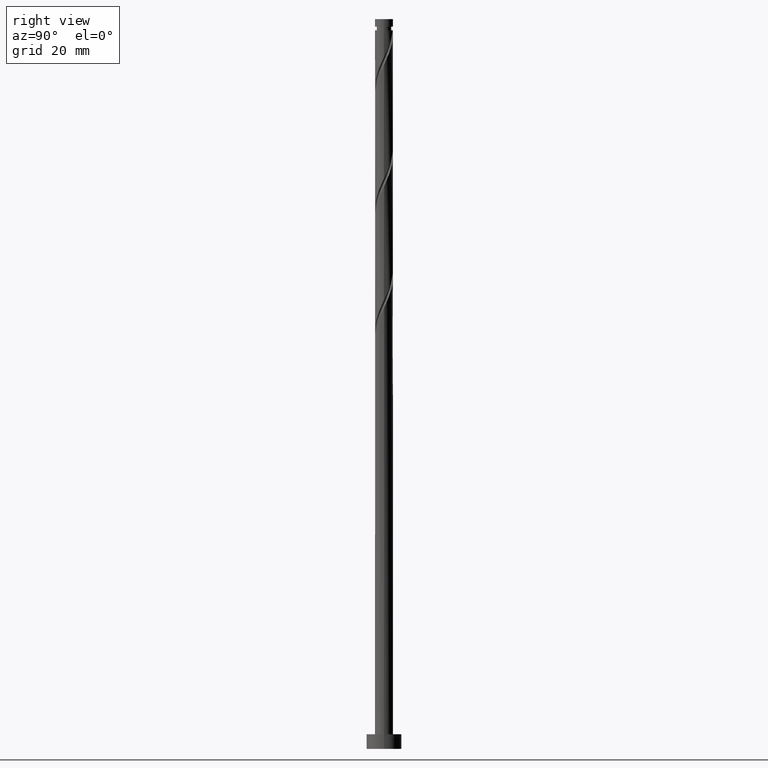
[diagram: clean part render]
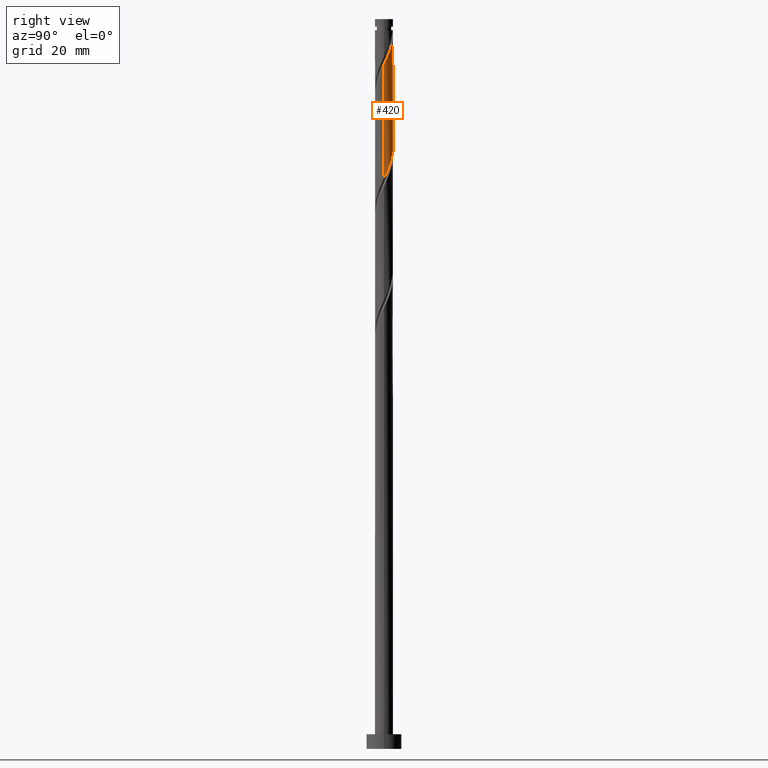
[diagram: same view with one face highlighted and labeled with its STEP entity id]
A machine part, right view. The second image highlights one B-rep face of the part: STEP entity #420.
In plain terms, the highlighted cylindrical surface (edge-blend (fillet) strip) has radius 3.1 mm, axis along (-0, -0, -1).
Its self-contained STEP definition (entity closure, byte-faithful):
#58 = CARTESIAN_POINT ( 'NONE',  ( 2.822669712321752122, 1.335746528729902183, 237.3665184554157577 ) ) ;
#78 = CARTESIAN_POINT ( 'NONE',  ( 0.1280745435953598022, 3.097353210611097918, 244.5780569169541820 ) ) ;
#112 = EDGE_CURVE ( 'NONE', #328, #1081, #1100, .T. ) ;
#125 =( BOUNDED_CURVE ( )  B_SPLINE_CURVE ( 2, ( #1617, #1496, #511, #338, #355, #58, #1193, #627, #931, #784, #1747, #1635, #1468, #1353, #78, #905, #1609 ),
 .UNSPECIFIED., .F., .T. ) 
 B_SPLINE_CURVE_WITH_KNOTS ( ( 3, 2, 2, 2, 2, 2, 2, 2, 3 ),
 ( 0.6795271625973829943, 0.6826923076923077094, 0.6923076923076924016, 0.7019230769230769829, 0.7115384615384616751, 0.7211538461538463674, 0.7307692307692310596, 0.7403846153846157518, 0.7500000000000003331 ),
 .UNSPECIFIED. ) 
 CURVE ( )  GEOMETRIC_REPRESENTATION_ITEM ( )  RATIONAL_B_SPLINE_CURVE ( ( 0.9061636035682938406, 0.9069090390690823789, 0.9090909090909391477, 0.9024626128164425776, 0.9090909090909391477, 0.9024626128164425776, 0.9090909090909391477, 0.9024626128164425776, 0.9090909090909391477, 0.9024626128164425776, 0.9090909090909391477, 0.9024626128164425776, 0.9090909090909391477, 0.9024626128164425776, 0.9090909090909391477, 0.9024626128164423555, 0.9090909090909393697 ) ) 
 REPRESENTATION_ITEM ( '' )  );
#168 = CARTESIAN_POINT ( 'NONE',  ( -3.099999999999999645, -3.948367772787669872E-15, 216.2585428954101587 ) ) ;
#213 = EDGE_CURVE ( 'NONE', #940, #393, #728, .T. ) ;
#259 = CARTESIAN_POINT ( 'NONE',  ( -3.060313128317944109, 0.6214230849569030157, 214.9306210195183553 ) ) ;
#268 = CARTESIAN_POINT ( 'NONE',  ( 2.998562407077144609, 0.8719556093840056255, 197.3024158913131885 ) ) ;
#284 = VECTOR ( 'NONE', #960, 1000.000000000000000 ) ;
#296 = DIRECTION ( 'NONE',  ( -0.000000000000000000, -0.000000000000000000, -1.000000000000000000 ) ) ;
#328 = VERTEX_POINT ( 'NONE', #699 ) ;
#338 = CARTESIAN_POINT ( 'NONE',  ( 3.060313128317948994, 0.6214230849569025716, 235.7639543528516413 ) ) ;
#355 = CARTESIAN_POINT ( 'NONE',  ( 2.941491420319851446, 0.9785848068434013225, 236.5652364041337137 ) ) ;
#378 = CARTESIAN_POINT ( 'NONE',  ( 1.326007432615846859, 2.802089272069597570, 202.9113902502875817 ) ) ;
#384 = EDGE_CURVE ( 'NONE', #1081, #393, #1011, .T. ) ;
#388 = CARTESIAN_POINT ( 'NONE',  ( -1.878597541326290532, 2.494504834951285055, 210.1229287118260629 ) ) ;
#393 = VERTEX_POINT ( 'NONE', #1120 ) ;
#401 = ORIENTED_EDGE ( 'NONE', *, *, #384, .F. ) ;
#417 = CARTESIAN_POINT ( 'NONE',  ( -3.090207698699929395, 0.2462039376120597756, 215.7319030708003424 ) ) ;
#420 = ADVANCED_FACE ( 'NONE', ( #1822 ), #1684, .T. ) ;
#489 = ORIENTED_EDGE ( 'NONE', *, *, #213, .T. ) ;
#511 = CARTESIAN_POINT ( 'NONE',  ( 3.090207698699935612, 0.2462039376120576106, 234.9626723015695973 ) ) ;
#557 = CARTESIAN_POINT ( 'NONE',  ( 3.059332338079530089, 0.5004854095583954887, 196.5011338400311161 ) ) ;
#565 = CARTESIAN_POINT ( 'NONE',  ( -1.552816185334429777, 2.683050855754215203, 209.3216466605439621 ) ) ;
#605 = ORIENTED_EDGE ( 'NONE', *, *, #691, .F. ) ;
#623 = AXIS2_PLACEMENT_3D ( 'NONE', #819, #989, #1379 ) ;
#627 = CARTESIAN_POINT ( 'NONE',  ( 2.420982992632358055, 1.972441239494200138, 238.9690825579798741 ) ) ;
#661 = ORIENTED_EDGE ( 'NONE', *, *, #112, .F. ) ;
#686 = CARTESIAN_POINT ( 'NONE',  ( -0.5041613131675906079, 3.081802145527458681, 206.9178005066977732 ) ) ;
#691 = EDGE_CURVE ( 'NONE', #940, #970, #125, .T. ) ;
#699 = CARTESIAN_POINT ( 'NONE',  ( -3.099999999999982325, 0.000000000000000000, 246.1806210195182985 ) ) ;
#728 = LINE ( 'NONE', #1715, #1215 ) ;
#769 = DIRECTION ( 'NONE',  ( -0.000000000000000000, -0.000000000000000000, -1.000000000000000000 ) ) ;
#784 = CARTESIAN_POINT ( 'NONE',  ( 1.878597541326295861, 2.494504834951285943, 240.5716466605439905 ) ) ;
#819 = CARTESIAN_POINT ( 'NONE',  ( 0.000000000000000000, 0.000000000000000000, 250.0000000000000000 ) ) ;
#827 = CARTESIAN_POINT ( 'NONE',  ( 3.100000000000000977, 0.2518949594648341450, 195.9649102994251564 ) ) ;
#837 = CARTESIAN_POINT ( 'NONE',  ( -2.822669712321746793, 1.335746528729902183, 213.3280569169542389 ) ) ;
#883 = EDGE_CURVE ( 'NONE', #328, #970, #1246, .T. ) ;
#905 = CARTESIAN_POINT ( 'NONE',  ( -0.2480122259768898496, 3.112904275694732270, 245.3793389682362829 ) ) ;
#931 = CARTESIAN_POINT ( 'NONE',  ( 2.149790266979326070, 2.233473037222744040, 239.7703646092619181 ) ) ;
#940 = VERTEX_POINT ( 'NONE', #1035 ) ;
#960 = DIRECTION ( 'NONE',  ( -0.000000000000000000, -0.000000000000000000, -1.000000000000000000 ) ) ;
#966 = CARTESIAN_POINT ( 'NONE',  ( 2.476317086136641699, 1.864900450133392784, 199.7062620451593489 ) ) ;
#970 = VERTEX_POINT ( 'NONE', #1165 ) ;
#983 = CARTESIAN_POINT ( 'NONE',  ( -2.621826352477049316, 1.654093884112051160, 212.5267748656721380 ) ) ;
#989 = DIRECTION ( 'NONE',  ( -0.000000000000000000, -0.000000000000000000, -1.000000000000000000 ) ) ;
#1011 =( BOUNDED_CURVE ( )  B_SPLINE_CURVE ( 2, ( #1273, #1537, #417, #259, #1799, #837, #983, #1660, #1546, #388, #565, #1666, #1400, #686, #1408, #1261, #1521, #1790, #378, #1389, #1240, #1816, #966, #1129, #1807, #268, #557, #827, #1648 ),
 .UNSPECIFIED., .F., .T. ) 
 B_SPLINE_CURVE_WITH_KNOTS ( ( 3, 2, 2, 2, 2, 2, 2, 2, 2, 2, 2, 2, 2, 2, 3 ),
 ( 0.4295271625973833274, 0.4326923076923077094, 0.4423076923076922906, 0.4519230769230769273, 0.4615384615384615641, 0.4711538461538461453, 0.4807692307692307820, 0.4903846153846153633, 0.5000000000000000000, 0.5096153846153845812, 0.5192307692307692735, 0.5288461538461538547, 0.5384615384615384359, 0.5480769230769231282, 0.5545271625973834384 ),
 .UNSPECIFIED. ) 
 CURVE ( )  GEOMETRIC_REPRESENTATION_ITEM ( )  RATIONAL_B_SPLINE_CURVE ( ( 0.9061636035682864021, 0.9069090390690750514, 0.9090909090909315982, 0.9024626128164350281, 0.9090909090909315982, 0.9024626128164350281, 0.9090909090909315982, 0.9024626128164350281, 0.9090909090909315982, 0.9024626128164350281, 0.9090909090909315982, 0.9024626128164350281, 0.9090909090909315982, 0.9024626128164350281, 0.9090909090909315982, 0.9024626128164350281, 0.9090909090909315982, 0.9024626128164350281, 0.9090909090909315982, 0.9024626128164350281, 0.9090909090909315982, 0.9024626128164350281, 0.9090909090909315982, 0.9024626128164350281, 0.9090909090909315982, 0.9024626128164350281, 0.9090909090909315982, 0.9046444828382915748, 0.9061636035682865131 ) ) 
 REPRESENTATION_ITEM ( '' )  );
#1031 = EDGE_LOOP ( 'NONE', ( #605, #489, #401, #661, #1726 ) ) ;
#1035 = CARTESIAN_POINT ( 'NONE',  ( 3.100000000000005418, -1.301166652395925986E-15, 234.4360324769597810 ) ) ;
#1081 = VERTEX_POINT ( 'NONE', #168 ) ;
#1100 = LINE ( 'NONE', #1653, #284 ) ;
#1120 = CARTESIAN_POINT ( 'NONE',  ( 3.099999999999999645, 4.112883096653824131E-15, 195.4252095620768159 ) ) ;
#1129 = CARTESIAN_POINT ( 'NONE',  ( 2.702756997303925157, 1.564221118447511216, 198.9049799938773617 ) ) ;
#1165 = CARTESIAN_POINT ( 'NONE',  ( -0.6168922110061334507, 3.038000000000002032, 246.1806210195182985 ) ) ;
#1183 = CARTESIAN_POINT ( 'NONE',  ( 0.000000000000000000, 0.000000000000000000, 246.1806210195182985 ) ) ;
#1193 = CARTESIAN_POINT ( 'NONE',  ( 2.621826352477054645, 1.654093884112052937, 238.1678005066978017 ) ) ;
#1215 = VECTOR ( 'NONE', #296, 1000.000000000000000 ) ;
#1217 = AXIS2_PLACEMENT_3D ( 'NONE', #1183, #769, #1345 ) ;
#1240 = CARTESIAN_POINT ( 'NONE',  ( 1.958059922082858728, 2.403331300826598405, 201.3088261477234653 ) ) ;
#1246 = CIRCLE ( 'NONE', #1217, 3.099999999999982325 ) ;
#1261 = CARTESIAN_POINT ( 'NONE',  ( 0.2480122259768786641, 3.112904275694726053, 205.3152364041336853 ) ) ;
#1273 = CARTESIAN_POINT ( 'NONE',  ( -3.099999999999999645, -3.948367772787669872E-15, 216.2585428954101587 ) ) ;
#1345 = DIRECTION ( 'NONE',  ( -1.000000000000000000, 0.000000000000000000, 0.000000000000000000 ) ) ;
#1353 = CARTESIAN_POINT ( 'NONE',  ( 0.5041613131675937165, 3.081802145527464010, 243.7767748656721096 ) ) ;
#1379 = DIRECTION ( 'NONE',  ( -1.000000000000000000, 0.000000000000000000, 0.000000000000000000 ) ) ;
#1389 = CARTESIAN_POINT ( 'NONE',  ( 1.666242669196356996, 2.641082819833925122, 202.1101081990054524 ) ) ;
#1400 = CARTESIAN_POINT ( 'NONE',  ( -0.8655980712550804812, 2.976699511042302237, 207.7190825579798457 ) ) ;
#1408 = CARTESIAN_POINT ( 'NONE',  ( -0.1280745435953560274, 3.097353210611092145, 206.1165184554157861 ) ) ;
#1468 = CARTESIAN_POINT ( 'NONE',  ( 0.8655980712550847000, 2.976699511042306234, 242.9754928143901225 ) ) ;
#1496 = CARTESIAN_POINT ( 'NONE',  ( 3.100000000000006306, 0.1232967040439690715, 234.7002033925926980 ) ) ;
#1521 = CARTESIAN_POINT ( 'NONE',  ( 0.6168922110061069164, 3.037999999999998924, 204.5139543528516413 ) ) ;
#1537 = CARTESIAN_POINT ( 'NONE',  ( -3.099999999999999645, 0.1232967040439844897, 215.9943719797772133 ) ) ;
#1546 = CARTESIAN_POINT ( 'NONE',  ( -2.149790266979321185, 2.233473037222740931, 210.9242107631080216 ) ) ;
#1609 = CARTESIAN_POINT ( 'NONE',  ( -0.6168922110061334507, 3.038000000000002476, 246.1806210195182985 ) ) ;
#1617 = CARTESIAN_POINT ( 'NONE',  ( 3.100000000000005418, -1.301166652395925986E-15, 234.4360324769597810 ) ) ;
#1635 = CARTESIAN_POINT ( 'NONE',  ( 1.227034829342573241, 2.871596876557151123, 242.1742107631080216 ) ) ;
#1648 = CARTESIAN_POINT ( 'NONE',  ( 3.099999999999999645, 4.112883096653824131E-15, 195.4252095620768159 ) ) ;
#1653 = CARTESIAN_POINT ( 'NONE',  ( -3.100000000000000089, 0.000000000000000000, 250.0000000000000000 ) ) ;
#1660 = CARTESIAN_POINT ( 'NONE',  ( -2.420982992632351838, 1.972441239494199250, 211.7254928143901225 ) ) ;
#1666 = CARTESIAN_POINT ( 'NONE',  ( -1.227034829342569688, 2.871596876557147127, 208.5203646092619181 ) ) ;
#1684 = CYLINDRICAL_SURFACE ( 'NONE', #623, 3.100000000000000089 ) ;
#1715 = CARTESIAN_POINT ( 'NONE',  ( 3.100000000000000089, 3.796405077356794918E-16, 250.0000000000000000 ) ) ;
#1726 = ORIENTED_EDGE ( 'NONE', *, *, #883, .T. ) ;
#1747 = CARTESIAN_POINT ( 'NONE',  ( 1.552816185334434218, 2.683050855754219199, 241.3729287118260061 ) ) ;
#1790 = CARTESIAN_POINT ( 'NONE',  ( 0.9857721960353355017, 2.963095724305272238, 203.7126723015696825 ) ) ;
#1799 = CARTESIAN_POINT ( 'NONE',  ( -2.941491420319844785, 0.9785848068434026548, 214.1293389682363113 ) ) ;
#1807 = CARTESIAN_POINT ( 'NONE',  ( 2.850659702190533995, 1.218088363915759365, 198.1036979425952609 ) ) ;
#1816 = CARTESIAN_POINT ( 'NONE',  ( 2.249877174969357796, 2.165579781819274352, 200.5075440964414213 ) ) ;
#1822 = FACE_OUTER_BOUND ( 'NONE', #1031, .T. ) ;